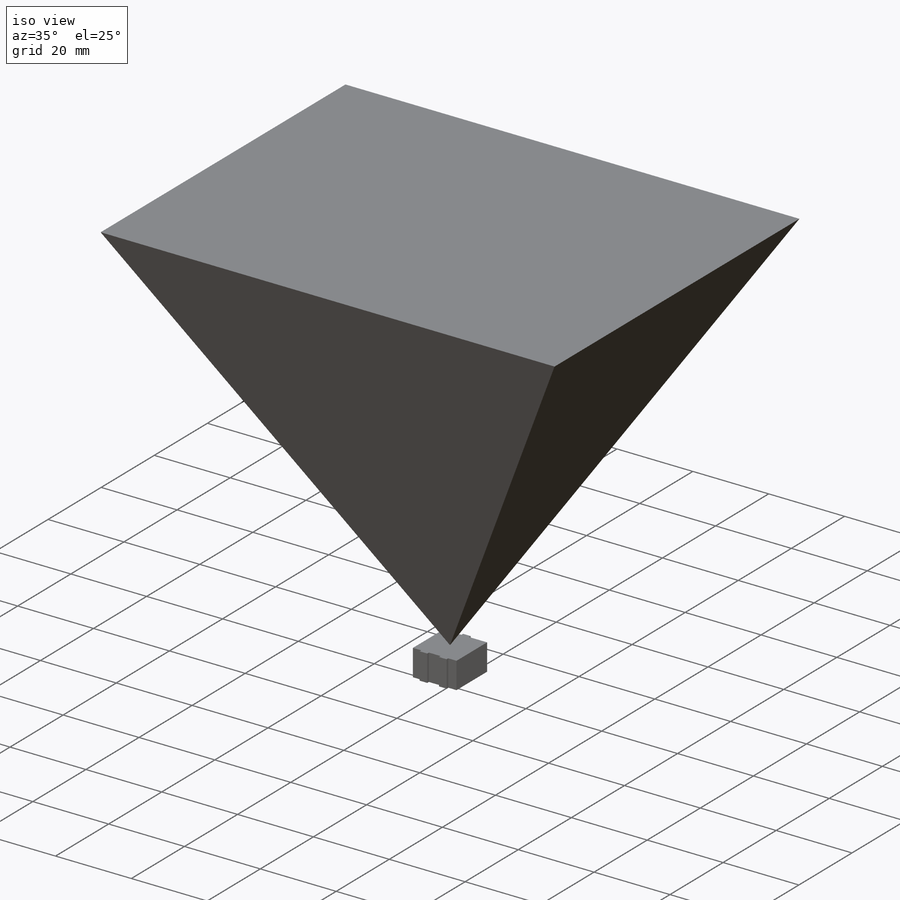
[diagram: iso view]
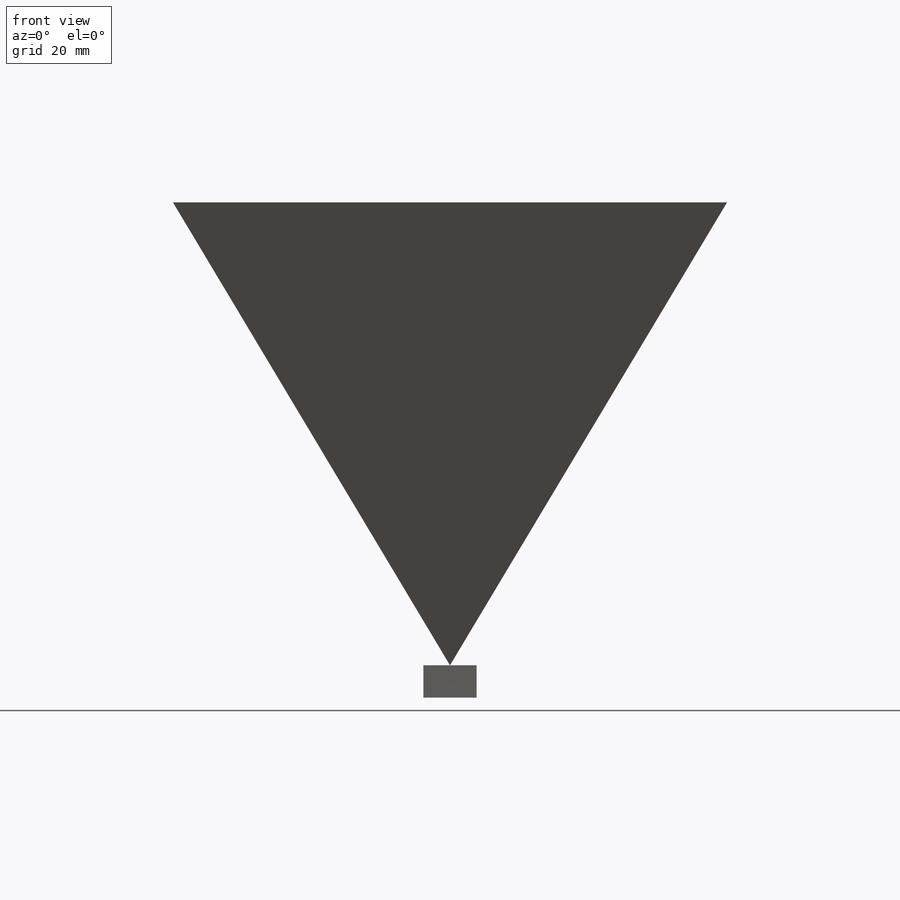
[diagram: front view]
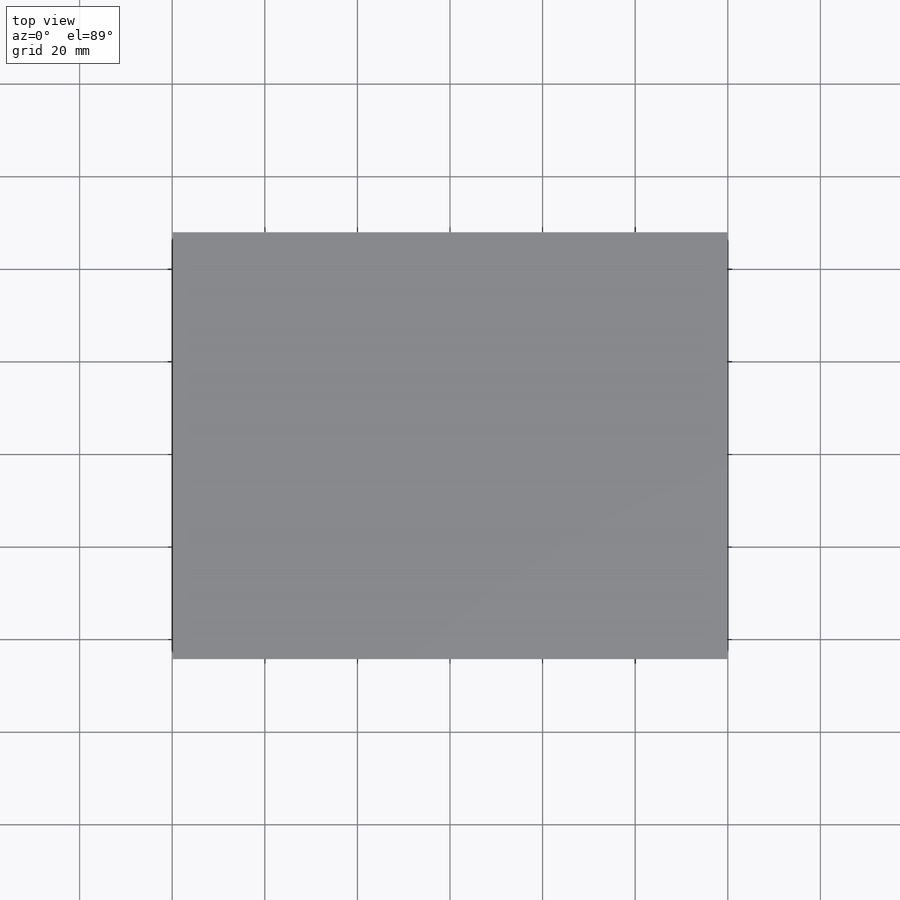
[diagram: top view]
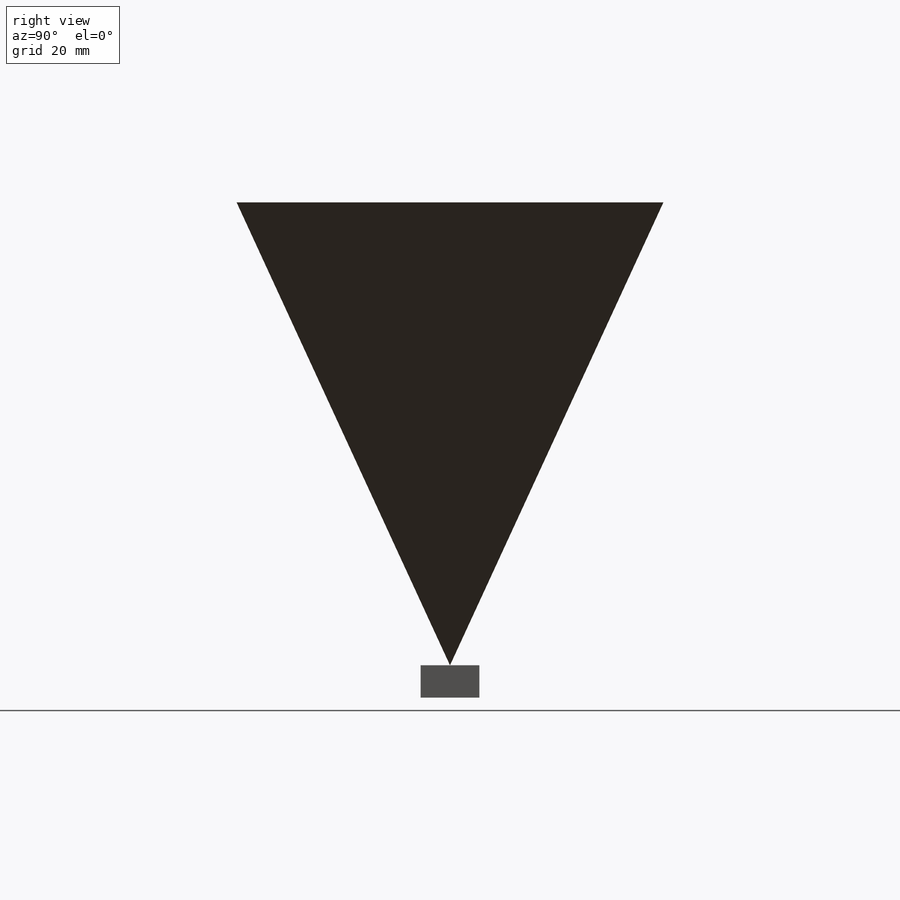
[diagram: right view]
SOLIDWORKS PART (.sldprt)
format: sldprt  version: not decoded by parser v0  size: 160,768 bytes
history: native  units: mm
features: plane x3, sketch x3, extrude x2, material x1, cut_extrude x1 (+9 scaffold rows collapsed)
feature tree (19):
  scaffold x9  (default folders/planes/origin — collapsed)
  material  "Material <nicht festgelegt>"
  plane  "Ebene vorne"
  plane  "Ebene oben"
  plane  "Ebene rechts"
  sketch  "Skizze1"  dims[D1=11.5mm D2=11.5mm D3=12.7mm D4=2.0mm D5=3.1mm]
  extrude  "Aufsatz-Linear austragen1"  Depth=7mm
  sketch  "Skizze2"  dims[c1.D1=~12.692249mm c2.D1=49.5deg c2.D2=100.0mm]
  extrude  "Aufsatz-Linear austragen2"  Depth=100mm
  sketch  "Skizze3"  dims[c1.D1=100.0mm c1.D2=100.0mm c2.D2=61.8deg]
  cut_extrude  "Schnitt-Linear austragen1"  Depth=100mm
decode coverage: 6 of 6 modeling features carry decoded parameters
note: ~ marks probable driven/reference dimensions
note: suppression state not decoded; provenance and decode notes live in map.json
